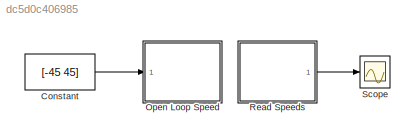
MODEL slx_dc5d0c406985
KIND model
BLOCK [Constant] Constant
  Value = [-45 45]
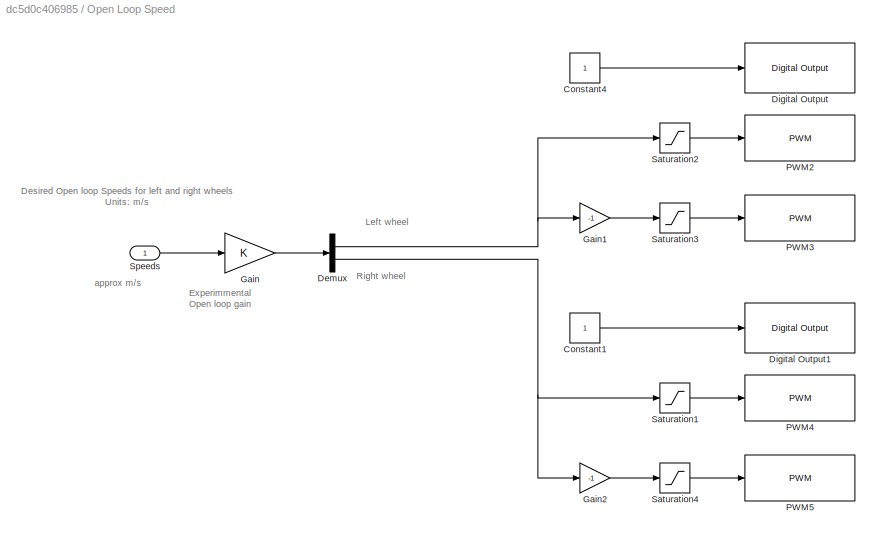
BLOCK [SubSystem] Open Loop Speed
  FunctionWithSeparateData = off
  MaskHideContents = off
  MinAlgLoopOccurrences = off
  Opaque = off
  Ports = [1]
  PropExecContextOutsideSubsystem = off
  RTWSystemCode = Auto
  RequestExecContextInheritance = off
BLOCK [Constant] Open Loop Speed/Constant1
BLOCK [Constant] Open Loop Speed/Constant4
BLOCK [Demux] Open Loop Speed/Demux
  DisplayOption = bar
  Outputs = 2
  Ports = [1, 2]
BLOCK [Reference] Open Loop Speed/Digital Output  REF=arduinolib/Digital Output
  Ports = [1]
  SourceBlock = arduinolib/Digital Output
  SourceType = Arduino Digital Output
  pinNumber = 8
BLOCK [Reference] Open Loop Speed/Digital Output1  REF=arduinolib/Digital Output
  Ports = [1]
  SourceBlock = arduinolib/Digital Output
  SourceType = Arduino Digital Output
  pinNumber = 13
BLOCK [Gain] Open Loop Speed/Gain
  OutDataTypeStr = Inherit: Inherit via internal rule
  ParamDataTypeStr = Inherit: Inherit via internal rule
  SaturateOnIntegerOverflow = off
BLOCK [Gain] Open Loop Speed/Gain1
  Gain = -1
  OutDataTypeStr = Inherit: Inherit via internal rule
  ParamDataTypeStr = Inherit: Inherit via internal rule
  SaturateOnIntegerOverflow = off
BLOCK [Gain] Open Loop Speed/Gain2
  Gain = -1
  OutDataTypeStr = Inherit: Inherit via internal rule
  ParamDataTypeStr = Inherit: Inherit via internal rule
  SaturateOnIntegerOverflow = off
BLOCK [Reference] Open Loop Speed/PWM2  REF=arduinolib/PWM
  Ports = [1]
  SourceBlock = arduinolib/PWM
  SourceType = Arduino PWM
  pinNumber = 9
BLOCK [Reference] Open Loop Speed/PWM3  REF=arduinolib/PWM
  Ports = [1]
  SourceBlock = arduinolib/PWM
  SourceType = Arduino PWM
  pinNumber = 10
BLOCK [Reference] Open Loop Speed/PWM4  REF=arduinolib/PWM
  Ports = [1]
  SourceBlock = arduinolib/PWM
  SourceType = Arduino PWM
  pinNumber = 11
BLOCK [Reference] Open Loop Speed/PWM5  REF=arduinolib/PWM
  Ports = [1]
  SourceBlock = arduinolib/PWM
  SourceType = Arduino PWM
  pinNumber = 12
BLOCK [Saturate] Open Loop Speed/Saturation1
  InputPortMap = u0
  LowerLimit = 0
  OutDataTypeStr = uint8
  Ports = [1, 1]
  UpperLimit = 255
BLOCK [Saturate] Open Loop Speed/Saturation2
  InputPortMap = u0
  LowerLimit = 0
  OutDataTypeStr = uint8
  Ports = [1, 1]
  UpperLimit = 255
BLOCK [Saturate] Open Loop Speed/Saturation3
  InputPortMap = u0
  LowerLimit = 0
  OutDataTypeStr = uint8
  Ports = [1, 1]
  UpperLimit = 255
BLOCK [Saturate] Open Loop Speed/Saturation4
  InputPortMap = u0
  LowerLimit = 0
  OutDataTypeStr = uint8
  Ports = [1, 1]
  UpperLimit = 255
BLOCK [Inport] Open Loop Speed/Speeds
  IconDisplay = Port number
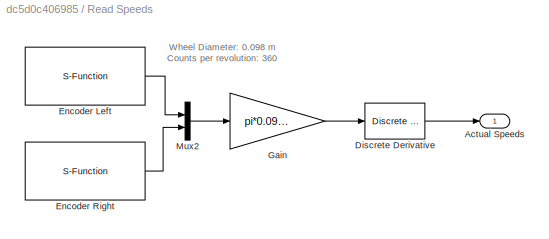
BLOCK [SubSystem] Read Speeds
  FunctionWithSeparateData = off
  MaskHideContents = off
  MinAlgLoopOccurrences = off
  Opaque = off
  Ports = [0, 1]
  PropExecContextOutsideSubsystem = off
  RTWSystemCode = Auto
  RequestExecContextInheritance = off
BLOCK [Outport] Read Speeds/Actual Speeds
  IconDisplay = Port number
BLOCK [Reference] Read Speeds/Discrete Derivative  REF=simulink/Discrete/Discrete Derivative
  DoSatur = off
  ICPrevScaledInput = 0.0
  InputProcessing = Inherited
  LockScale = off
  OutDataType = fixdt(1, 16)
  OutDataTypeStr = Inherit: Inherit via internal rule
  OutMax = []
  OutMin = []
  OutScaling = 2^-10
  OutputDataTypeScalingMode = Inherit via internal rule
  Ports = [1, 1]
  RndMeth = Floor
  SourceBlock = simulink/Discrete/Discrete Derivative
  SourceType = Discrete Derivative
  gainval = 1.0
BLOCK [S-Function] Read Speeds/Encoder Left
  CopyFcn = set_param(gcbh,'LinkStatus','none')
  EnableBusSupport = off
  FunctionName = sfcn_encoder
  InitFcn = try, set_param(gcb,'FunctionName','sfcn_encoder'), end
  OpenFcn = sfunctionwizard(gcbh)
  Parameters = uint8(0),uint8(3),uint8(2)
  Ports = [0, 1]
  PreSaveFcn = try, set_param(gcb,'FunctionName','sfcn_encoder'), end
  SFunctionModules = sfcn_encoder_wrapper
BLOCK [S-Function] Read Speeds/Encoder Right
  CopyFcn = set_param(gcbh,'LinkStatus','none')
  EnableBusSupport = off
  FunctionName = sfcn_encoder
  InitFcn = try, set_param(gcb,'FunctionName','sfcn_encoder'), end
  OpenFcn = sfunctionwizard(gcbh)
  Parameters = uint8(1),uint8(19),uint8(18)
  Ports = [0, 1]
  PreSaveFcn = try, set_param(gcb,'FunctionName','sfcn_encoder'), end
  SFunctionModules = sfcn_encoder_wrapper
BLOCK [Gain] Read Speeds/Gain
  Gain = pi*0.098/360
  OutDataTypeStr = double
  ParamDataTypeStr = Inherit: Inherit via internal rule
  SaturateOnIntegerOverflow = off
BLOCK [Mux] Read Speeds/Mux2
  DisplayOption = bar
  Inputs = 2
  Ports = [2, 1]
BLOCK [Scope] Scope
  DataFormat = StructureWithTime
  Floating = off
  NumInputPorts = 1
  Ports = [1]
  SampleTime = 0
  ShowLegends = off
ANNOTATION Open Loop Speed: Desired Open loop Speeds for left and right wheels Units: m/s
ANNOTATION Open Loop Speed: Experimmental Open loop gain
ANNOTATION Open Loop Speed: Left wheel
ANNOTATION Open Loop Speed: Right wheel
ANNOTATION Open Loop Speed: approx m/s
ANNOTATION Read Speeds: Wheel Diameter: 0.098 m Counts per revolution: 360
LINE Constant:1 -> Open Loop Speed:1
LINE Open Loop Speed/Constant1:1 -> Open Loop Speed/Digital Output1:1
LINE Open Loop Speed/Constant4:1 -> Open Loop Speed/Digital Output:1
NET Open Loop Speed/Demux:1 -> Open Loop Speed/Gain1:1, Open Loop Speed/Saturation2:1
NET Open Loop Speed/Demux:2 -> Open Loop Speed/Gain2:1, Open Loop Speed/Saturation1:1
LINE Open Loop Speed/Gain1:1 -> Open Loop Speed/Saturation3:1
LINE Open Loop Speed/Gain2:1 -> Open Loop Speed/Saturation4:1
LINE Open Loop Speed/Gain:1 -> Open Loop Speed/Demux:1
LINE Open Loop Speed/Saturation1:1 -> Open Loop Speed/PWM4:1
LINE Open Loop Speed/Saturation2:1 -> Open Loop Speed/PWM2:1
LINE Open Loop Speed/Saturation3:1 -> Open Loop Speed/PWM3:1
LINE Open Loop Speed/Saturation4:1 -> Open Loop Speed/PWM5:1
LINE Open Loop Speed/Speeds:1 -> Open Loop Speed/Gain:1
LINE Read Speeds/Discrete Derivative:1 -> Read Speeds/Actual Speeds:1
LINE Read Speeds/Encoder Left:1 -> Read Speeds/Mux2:1
LINE Read Speeds/Encoder Right:1 -> Read Speeds/Mux2:2
LINE Read Speeds/Gain:1 -> Read Speeds/Discrete Derivative:1
LINE Read Speeds/Mux2:1 -> Read Speeds/Gain:1
LINE Read Speeds:1 -> Scope:1
note: NET lines group one-source signal fan-out (src -> all destinations, sorted); 1:1 wires keep LINE
